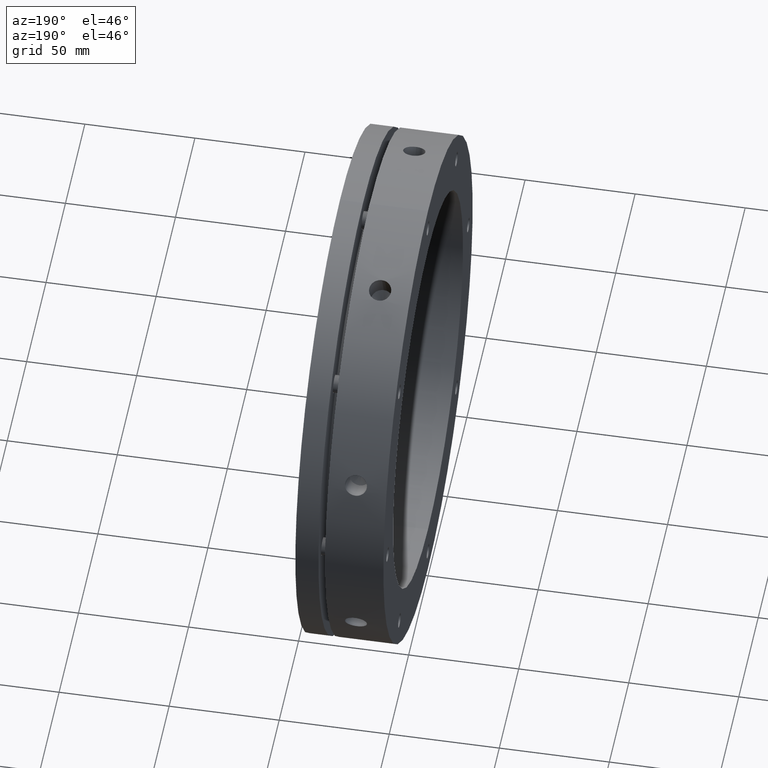
[diagram: clean part render]
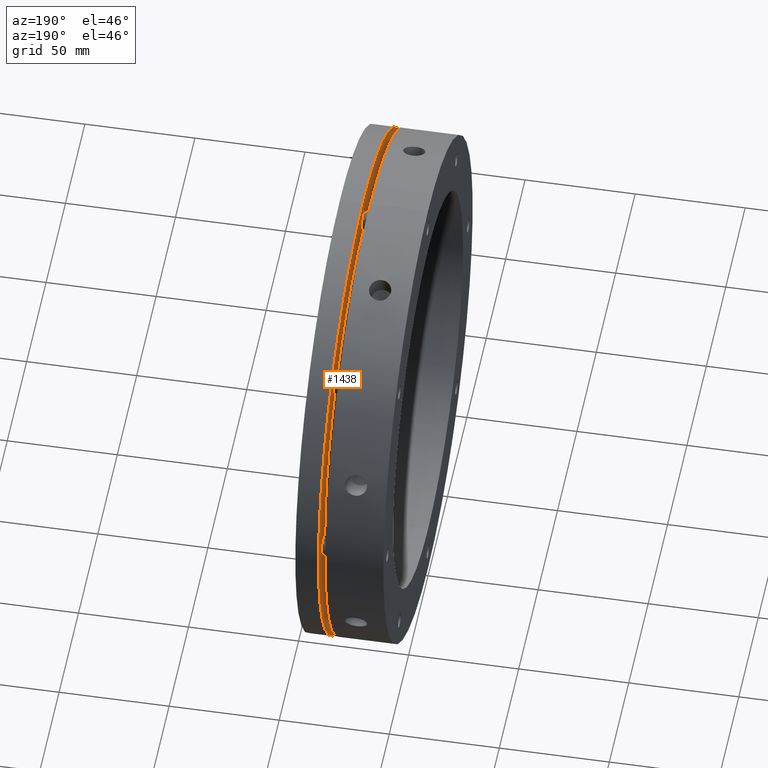
[diagram: same view with one face highlighted and labeled with its STEP entity id]
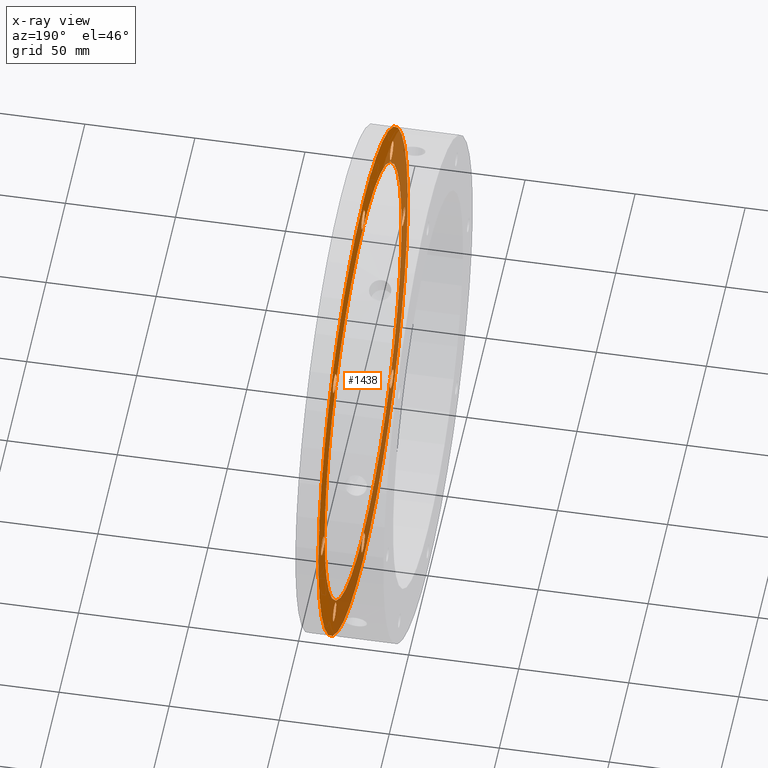
[diagram: x-ray of the same camera — body ghosted, the highlighted face saturated]
A machine part, auxiliary view. The second image highlights one B-rep face of the part: STEP entity #1438.
The next image is the same camera in x-ray: the body ghosted, the highlighted face saturated — about 52% of this face is hidden behind the body in this view.
In plain terms, the highlighted planar face has unit normal (1, 0, 0).
Its self-contained STEP definition (entity closure, byte-faithful):
#7 = CIRCLE ( 'NONE', #3951, 4.299999999999998000 ) ;
#18 = CIRCLE ( 'NONE', #3945, 115.0000000000000000 ) ;
#26 = CIRCLE ( 'NONE', #3949, 4.299999999999999800 ) ;
#29 = CIRCLE ( 'NONE', #3947, 4.299999999999998000 ) ;
#194 = CIRCLE ( 'NONE', #3959, 4.299999999999998000 ) ;
#254 = CIRCLE ( 'NONE', #3957, 4.299999999999999800 ) ;
#402 = DIRECTION ( 'NONE',  ( 1.000000000000000000, -0.0000000000000000000, 0.0000000000000000000 ) ) ;
#404 = CARTESIAN_POINT ( 'NONE',  ( 29.49999999999997500, 107.0000000000000000, 0.0000000000000000000 ) ) ;
#406 = PLANE ( 'NONE',  #5189 ) ;
#409 = DIRECTION ( 'NONE',  ( 0.0000000000000000000, 0.0000000000000000000, -1.000000000000000000 ) ) ;
#812 = CARTESIAN_POINT ( 'NONE',  ( 29.49999999999997500, 73.53910524340096800, 69.23910524340092800 ) ) ;
#873 = CARTESIAN_POINT ( 'NONE',  ( 29.49999999999997200, 1.408343819019456100E-014, 115.0000000000000000 ) ) ;
#883 = CARTESIAN_POINT ( 'NONE',  ( 29.49999999999997500, 73.53910524340096800, 77.83910524340093700 ) ) ;
#884 = CARTESIAN_POINT ( 'NONE',  ( 29.49999999999997500, 104.0000000000000100, 4.299999999999982900 ) ) ;
#888 = CARTESIAN_POINT ( 'NONE',  ( 29.49999999999997200, 0.0000000000000000000, -115.0000000000000000 ) ) ;
#889 = CARTESIAN_POINT ( 'NONE',  ( 29.49999999999997500, 104.0000000000000100, -4.300000000000017600 ) ) ;
#915 = CARTESIAN_POINT ( 'NONE',  ( 29.49999999999997500, 0.0000000000000000000, 0.0000000000000000000 ) ) ;
#916 = DIRECTION ( 'NONE',  ( -1.000000000000000000, 0.0000000000000000000, 0.0000000000000000000 ) ) ;
#917 = DIRECTION ( 'NONE',  ( 0.0000000000000000000, 0.0000000000000000000, 1.000000000000000000 ) ) ;
#937 = CARTESIAN_POINT ( 'NONE',  ( 29.49999999999997500, -1.723697187636663600E-014, -99.70000000000001700 ) ) ;
#941 = CARTESIAN_POINT ( 'NONE',  ( 29.49999999999997500, 0.0000000000000000000, 104.0000000000000100 ) ) ;
#942 = DIRECTION ( 'NONE',  ( -1.000000000000000000, -0.0000000000000000000, -0.0000000000000000000 ) ) ;
#943 = DIRECTION ( 'NONE',  ( 0.0000000000000000000, 0.0000000000000000000, -1.000000000000000000 ) ) ;
#944 = CARTESIAN_POINT ( 'NONE',  ( 29.49999999999997500, -73.53910524340094000, 73.53910524340095400 ) ) ;
#945 = DIRECTION ( 'NONE',  ( -1.000000000000000000, -0.0000000000000000000, -0.0000000000000000000 ) ) ;
#946 = DIRECTION ( 'NONE',  ( 0.0000000000000000000, 0.0000000000000000000, -1.000000000000000000 ) ) ;
#947 = CARTESIAN_POINT ( 'NONE',  ( 29.49999999999997500, -104.0000000000000100, 0.0000000000000000000 ) ) ;
#948 = DIRECTION ( 'NONE',  ( -1.000000000000000000, -0.0000000000000000000, -0.0000000000000000000 ) ) ;
#949 = DIRECTION ( 'NONE',  ( 0.0000000000000000000, 0.0000000000000000000, -1.000000000000000000 ) ) ;
#950 = CARTESIAN_POINT ( 'NONE',  ( 29.49999999999997500, -73.53910524340095400, -73.53910524340094000 ) ) ;
#951 = DIRECTION ( 'NONE',  ( -1.000000000000000000, -0.0000000000000000000, -0.0000000000000000000 ) ) ;
#952 = DIRECTION ( 'NONE',  ( 0.0000000000000000000, 0.0000000000000000000, -1.000000000000000000 ) ) ;
#953 = CARTESIAN_POINT ( 'NONE',  ( 29.49999999999997500, -1.776356999999999900E-014, -104.0000000000000100 ) ) ;
#954 = DIRECTION ( 'NONE',  ( -1.000000000000000000, -0.0000000000000000000, -0.0000000000000000000 ) ) ;
#955 = DIRECTION ( 'NONE',  ( 0.0000000000000000000, 0.0000000000000000000, -1.000000000000000000 ) ) ;
#956 = CARTESIAN_POINT ( 'NONE',  ( 29.49999999999997500, 73.53910524340092500, -73.53910524340095400 ) ) ;
#957 = DIRECTION ( 'NONE',  ( -1.000000000000000000, -0.0000000000000000000, -0.0000000000000000000 ) ) ;
#958 = DIRECTION ( 'NONE',  ( 0.0000000000000000000, 0.0000000000000000000, -1.000000000000000000 ) ) ;
#959 = CARTESIAN_POINT ( 'NONE',  ( 29.49999999999997500, 104.0000000000000100, -1.776356999999999900E-014 ) ) ;
#960 = DIRECTION ( 'NONE',  ( -1.000000000000000000, -0.0000000000000000000, -0.0000000000000000000 ) ) ;
#961 = DIRECTION ( 'NONE',  ( 0.0000000000000000000, 0.0000000000000000000, -1.000000000000000000 ) ) ;
#962 = CARTESIAN_POINT ( 'NONE',  ( 29.49999999999997500, 73.53910524340096800, 73.53910524340092500 ) ) ;
#963 = DIRECTION ( 'NONE',  ( -1.000000000000000000, -0.0000000000000000000, -0.0000000000000000000 ) ) ;
#964 = DIRECTION ( 'NONE',  ( 0.0000000000000000000, 0.0000000000000000000, -1.000000000000000000 ) ) ;
#965 = CARTESIAN_POINT ( 'NONE',  ( 29.49999999999997200, 0.0000000000000000000, 0.0000000000000000000 ) ) ;
#966 = DIRECTION ( 'NONE',  ( 1.000000000000000000, 0.0000000000000000000, 0.0000000000000000000 ) ) ;
#967 = DIRECTION ( 'NONE',  ( 0.0000000000000000000, 0.0000000000000000000, -1.000000000000000000 ) ) ;
#973 = CARTESIAN_POINT ( 'NONE',  ( 29.49999999999997500, -73.53910524340095400, -77.83910524340095100 ) ) ;
#997 = CARTESIAN_POINT ( 'NONE',  ( 29.49999999999997500, -104.0000000000000100, 4.299999999999999800 ) ) ;
#1029 = CARTESIAN_POINT ( 'NONE',  ( 29.49999999999997500, -104.0000000000000100, -4.299999999999999800 ) ) ;
#1034 = CARTESIAN_POINT ( 'NONE',  ( 29.49999999999997500, 73.53910524340092500, -77.83910524340095100 ) ) ;
#1037 = CARTESIAN_POINT ( 'NONE',  ( 29.49999999999997500, 1.212400331155879700E-014, -99.00000000000000000 ) ) ;
#1049 = CIRCLE ( 'NONE', #5040, 115.0000000000000000 ) ;
#1078 = CIRCLE ( 'NONE', #5043, 4.299999999999998000 ) ;
#1080 = CIRCLE ( 'NONE', #5048, 4.299999999999998000 ) ;
#1089 = CIRCLE ( 'NONE', #5047, 4.299999999999998000 ) ;
#1092 = CIRCLE ( 'NONE', #5044, 4.299999999999998000 ) ;
#1097 = CIRCLE ( 'NONE', #5046, 4.299999999999999800 ) ;
#1116 = CIRCLE ( 'NONE', #5045, 4.299999999999998000 ) ;
#1121 = CIRCLE ( 'NONE', #5042, 4.299999999999999800 ) ;
#1135 = CIRCLE ( 'NONE', #5041, 4.299999999999998000 ) ;
#1280 = CIRCLE ( 'NONE', #5056, 99.00000000000000000 ) ;
#1438 = ADVANCED_FACE ( 'NONE', ( #3524, #3538, #3529, #3542, #3525, #3544, #3555, #3530, #3503, #3504 ), #406, .F. ) ;
#1747 = CARTESIAN_POINT ( 'NONE',  ( 29.49999999999997500, -73.53910524340094000, 77.83910524340095100 ) ) ;
#1758 = CARTESIAN_POINT ( 'NONE',  ( 29.49999999999997500, 5.265981236333620400E-016, 108.3000000000000100 ) ) ;
#1760 = CARTESIAN_POINT ( 'NONE',  ( 29.49999999999997500, -73.53910524340094000, 69.23910524340095700 ) ) ;
#1776 = CARTESIAN_POINT ( 'NONE',  ( 29.49999999999997500, 0.0000000000000000000, 99.00000000000000000 ) ) ;
#1782 = CARTESIAN_POINT ( 'NONE',  ( 29.49999999999997500, 73.53910524340092500, -69.23910524340095700 ) ) ;
#1798 = CARTESIAN_POINT ( 'NONE',  ( 29.49999999999997500, 0.0000000000000000000, 99.70000000000001700 ) ) ;
#1800 = CARTESIAN_POINT ( 'NONE',  ( 29.49999999999997500, -1.776356999999999900E-014, -108.3000000000000100 ) ) ;
#2246 = CARTESIAN_POINT ( 'NONE',  ( 29.49999999999997500, 0.0000000000000000000, 0.0000000000000000000 ) ) ;
#2247 = DIRECTION ( 'NONE',  ( -1.000000000000000000, 0.0000000000000000000, 0.0000000000000000000 ) ) ;
#2248 = DIRECTION ( 'NONE',  ( 0.0000000000000000000, 0.0000000000000000000, 1.000000000000000000 ) ) ;
#3108 = CARTESIAN_POINT ( 'NONE',  ( 29.49999999999997500, 0.0000000000000000000, 104.0000000000000100 ) ) ;
#3109 = DIRECTION ( 'NONE',  ( -1.000000000000000000, -0.0000000000000000000, -0.0000000000000000000 ) ) ;
#3110 = DIRECTION ( 'NONE',  ( 0.0000000000000000000, 0.0000000000000000000, -1.000000000000000000 ) ) ;
#3118 = CARTESIAN_POINT ( 'NONE',  ( 29.49999999999997500, -73.53910524340094000, 73.53910524340095400 ) ) ;
#3119 = DIRECTION ( 'NONE',  ( -1.000000000000000000, -0.0000000000000000000, -0.0000000000000000000 ) ) ;
#3120 = DIRECTION ( 'NONE',  ( 0.0000000000000000000, 0.0000000000000000000, -1.000000000000000000 ) ) ;
#3128 = CARTESIAN_POINT ( 'NONE',  ( 29.49999999999997500, -104.0000000000000100, 0.0000000000000000000 ) ) ;
#3129 = DIRECTION ( 'NONE',  ( -1.000000000000000000, -0.0000000000000000000, -0.0000000000000000000 ) ) ;
#3130 = DIRECTION ( 'NONE',  ( 0.0000000000000000000, 0.0000000000000000000, -1.000000000000000000 ) ) ;
#3138 = CARTESIAN_POINT ( 'NONE',  ( 29.49999999999997500, -73.53910524340095400, -73.53910524340094000 ) ) ;
#3139 = DIRECTION ( 'NONE',  ( -1.000000000000000000, -0.0000000000000000000, -0.0000000000000000000 ) ) ;
#3140 = DIRECTION ( 'NONE',  ( 0.0000000000000000000, 0.0000000000000000000, -1.000000000000000000 ) ) ;
#3148 = CARTESIAN_POINT ( 'NONE',  ( 29.49999999999997500, -1.776356999999999900E-014, -104.0000000000000100 ) ) ;
#3149 = DIRECTION ( 'NONE',  ( -1.000000000000000000, -0.0000000000000000000, -0.0000000000000000000 ) ) ;
#3150 = DIRECTION ( 'NONE',  ( 0.0000000000000000000, 0.0000000000000000000, -1.000000000000000000 ) ) ;
#3158 = CARTESIAN_POINT ( 'NONE',  ( 29.49999999999997500, 73.53910524340092500, -73.53910524340095400 ) ) ;
#3159 = DIRECTION ( 'NONE',  ( -1.000000000000000000, -0.0000000000000000000, -0.0000000000000000000 ) ) ;
#3160 = DIRECTION ( 'NONE',  ( 0.0000000000000000000, 0.0000000000000000000, -1.000000000000000000 ) ) ;
#3168 = CARTESIAN_POINT ( 'NONE',  ( 29.49999999999997500, 104.0000000000000100, -1.776356999999999900E-014 ) ) ;
#3169 = DIRECTION ( 'NONE',  ( -1.000000000000000000, -0.0000000000000000000, -0.0000000000000000000 ) ) ;
#3170 = DIRECTION ( 'NONE',  ( 0.0000000000000000000, 0.0000000000000000000, -1.000000000000000000 ) ) ;
#3178 = CARTESIAN_POINT ( 'NONE',  ( 29.49999999999997500, 73.53910524340096800, 73.53910524340092500 ) ) ;
#3179 = DIRECTION ( 'NONE',  ( -1.000000000000000000, -0.0000000000000000000, -0.0000000000000000000 ) ) ;
#3180 = DIRECTION ( 'NONE',  ( 0.0000000000000000000, 0.0000000000000000000, -1.000000000000000000 ) ) ;
#3188 = CARTESIAN_POINT ( 'NONE',  ( 29.49999999999997200, 0.0000000000000000000, 0.0000000000000000000 ) ) ;
#3189 = DIRECTION ( 'NONE',  ( 1.000000000000000000, 0.0000000000000000000, 0.0000000000000000000 ) ) ;
#3190 = DIRECTION ( 'NONE',  ( 0.0000000000000000000, 0.0000000000000000000, -1.000000000000000000 ) ) ;
#3503 = FACE_BOUND ( 'NONE', #3573, .T. ) ;
#3504 = FACE_OUTER_BOUND ( 'NONE', #3603, .T. ) ;
#3524 = FACE_BOUND ( 'NONE', #3592, .T. ) ;
#3525 = FACE_BOUND ( 'NONE', #3593, .T. ) ;
#3529 = FACE_BOUND ( 'NONE', #3607, .T. ) ;
#3530 = FACE_BOUND ( 'NONE', #3605, .T. ) ;
#3538 = FACE_BOUND ( 'NONE', #3612, .T. ) ;
#3542 = FACE_BOUND ( 'NONE', #3609, .T. ) ;
#3544 = FACE_BOUND ( 'NONE', #3610, .T. ) ;
#3555 = FACE_BOUND ( 'NONE', #3586, .T. ) ;
#3558 = CARTESIAN_POINT ( 'NONE',  ( 29.49999999999997500, -73.53910524340095400, -69.23910524340094200 ) ) ;
#3573 = EDGE_LOOP ( 'NONE', ( #4470, #4497 ) ) ;
#3586 = EDGE_LOOP ( 'NONE', ( #4486, #4572 ) ) ;
#3592 = EDGE_LOOP ( 'NONE', ( #4603, #4602 ) ) ;
#3593 = EDGE_LOOP ( 'NONE', ( #4482, #4616 ) ) ;
#3603 = EDGE_LOOP ( 'NONE', ( #4472, #4471 ) ) ;
#3605 = EDGE_LOOP ( 'NONE', ( #4463, #4466 ) ) ;
#3607 = EDGE_LOOP ( 'NONE', ( #4571, #4703 ) ) ;
#3609 = EDGE_LOOP ( 'NONE', ( #4594, #4556 ) ) ;
#3610 = EDGE_LOOP ( 'NONE', ( #4557, #4481 ) ) ;
#3612 = EDGE_LOOP ( 'NONE', ( #4468, #4492 ) ) ;
#3945 = AXIS2_PLACEMENT_3D ( 'NONE', #3188, #3189, #3190 ) ;
#3947 = AXIS2_PLACEMENT_3D ( 'NONE', #3178, #3179, #3180 ) ;
#3949 = AXIS2_PLACEMENT_3D ( 'NONE', #3168, #3169, #3170 ) ;
#3951 = AXIS2_PLACEMENT_3D ( 'NONE', #3158, #3159, #3160 ) ;
#3953 = AXIS2_PLACEMENT_3D ( 'NONE', #3148, #3149, #3150 ) ;
#3955 = AXIS2_PLACEMENT_3D ( 'NONE', #3138, #3139, #3140 ) ;
#3957 = AXIS2_PLACEMENT_3D ( 'NONE', #3128, #3129, #3130 ) ;
#3959 = AXIS2_PLACEMENT_3D ( 'NONE', #3118, #3119, #3120 ) ;
#3961 = AXIS2_PLACEMENT_3D ( 'NONE', #3108, #3109, #3110 ) ;
#4031 = AXIS2_PLACEMENT_3D ( 'NONE', #2246, #2247, #2248 ) ;
#4108 = VERTEX_POINT ( 'NONE', #812 ) ;
#4263 = VERTEX_POINT ( 'NONE', #873 ) ;
#4331 = VERTEX_POINT ( 'NONE', #883 ) ;
#4348 = VERTEX_POINT ( 'NONE', #888 ) ;
#4357 = VERTEX_POINT ( 'NONE', #884 ) ;
#4358 = VERTEX_POINT ( 'NONE', #889 ) ;
#4463 = ORIENTED_EDGE ( 'NONE', *, *, #5829, .F. ) ;
#4466 = ORIENTED_EDGE ( 'NONE', *, *, #5249, .F. ) ;
#4468 = ORIENTED_EDGE ( 'NONE', *, *, #5805, .F. ) ;
#4470 = ORIENTED_EDGE ( 'NONE', *, *, #5833, .F. ) ;
#4471 = ORIENTED_EDGE ( 'NONE', *, *, #5251, .F. ) ;
#4472 = ORIENTED_EDGE ( 'NONE', *, *, #5837, .F. ) ;
#4481 = ORIENTED_EDGE ( 'NONE', *, *, #5247, .F. ) ;
#4482 = ORIENTED_EDGE ( 'NONE', *, *, #5817, .F. ) ;
#4486 = ORIENTED_EDGE ( 'NONE', *, *, #5825, .F. ) ;
#4492 = ORIENTED_EDGE ( 'NONE', *, *, #5243, .F. ) ;
#4497 = ORIENTED_EDGE ( 'NONE', *, *, #5250, .F. ) ;
#4556 = ORIENTED_EDGE ( 'NONE', *, *, #5245, .F. ) ;
#4557 = ORIENTED_EDGE ( 'NONE', *, *, #5821, .F. ) ;
#4571 = ORIENTED_EDGE ( 'NONE', *, *, #5809, .F. ) ;
#4572 = ORIENTED_EDGE ( 'NONE', *, *, #5248, .F. ) ;
#4594 = ORIENTED_EDGE ( 'NONE', *, *, #5813, .F. ) ;
#4602 = ORIENTED_EDGE ( 'NONE', *, *, #5235, .F. ) ;
#4603 = ORIENTED_EDGE ( 'NONE', *, *, #5644, .F. ) ;
#4616 = ORIENTED_EDGE ( 'NONE', *, *, #5246, .F. ) ;
#4703 = ORIENTED_EDGE ( 'NONE', *, *, #5244, .F. ) ;
#5040 = AXIS2_PLACEMENT_3D ( 'NONE', #965, #966, #967 ) ;
#5041 = AXIS2_PLACEMENT_3D ( 'NONE', #962, #963, #964 ) ;
#5042 = AXIS2_PLACEMENT_3D ( 'NONE', #959, #960, #961 ) ;
#5043 = AXIS2_PLACEMENT_3D ( 'NONE', #956, #957, #958 ) ;
#5044 = AXIS2_PLACEMENT_3D ( 'NONE', #953, #954, #955 ) ;
#5045 = AXIS2_PLACEMENT_3D ( 'NONE', #950, #951, #952 ) ;
#5046 = AXIS2_PLACEMENT_3D ( 'NONE', #947, #948, #949 ) ;
#5047 = AXIS2_PLACEMENT_3D ( 'NONE', #944, #945, #946 ) ;
#5048 = AXIS2_PLACEMENT_3D ( 'NONE', #941, #942, #943 ) ;
#5056 = AXIS2_PLACEMENT_3D ( 'NONE', #915, #916, #917 ) ;
#5189 = AXIS2_PLACEMENT_3D ( 'NONE', #404, #402, #409 ) ;
#5235 = EDGE_CURVE ( 'NONE', #5345, #5466, #1280, .T. ) ;
#5243 = EDGE_CURVE ( 'NONE', #5436, #5505, #1080, .T. ) ;
#5244 = EDGE_CURVE ( 'NONE', #5413, #5441, #1089, .T. ) ;
#5245 = EDGE_CURVE ( 'NONE', #5290, #5333, #1097, .T. ) ;
#5246 = EDGE_CURVE ( 'NONE', #5387, #5263, #1116, .T. ) ;
#5247 = EDGE_CURVE ( 'NONE', #5260, #5508, #1092, .T. ) ;
#5248 = EDGE_CURVE ( 'NONE', #5478, #5340, #1078, .T. ) ;
#5249 = EDGE_CURVE ( 'NONE', #4357, #4358, #1121, .T. ) ;
#5250 = EDGE_CURVE ( 'NONE', #4331, #4108, #1135, .T. ) ;
#5251 = EDGE_CURVE ( 'NONE', #4263, #4348, #1049, .T. ) ;
#5260 = VERTEX_POINT ( 'NONE', #937 ) ;
#5263 = VERTEX_POINT ( 'NONE', #973 ) ;
#5290 = VERTEX_POINT ( 'NONE', #997 ) ;
#5333 = VERTEX_POINT ( 'NONE', #1029 ) ;
#5340 = VERTEX_POINT ( 'NONE', #1034 ) ;
#5345 = VERTEX_POINT ( 'NONE', #1037 ) ;
#5387 = VERTEX_POINT ( 'NONE', #3558 ) ;
#5413 = VERTEX_POINT ( 'NONE', #1747 ) ;
#5436 = VERTEX_POINT ( 'NONE', #1758 ) ;
#5441 = VERTEX_POINT ( 'NONE', #1760 ) ;
#5466 = VERTEX_POINT ( 'NONE', #1776 ) ;
#5478 = VERTEX_POINT ( 'NONE', #1782 ) ;
#5505 = VERTEX_POINT ( 'NONE', #1798 ) ;
#5508 = VERTEX_POINT ( 'NONE', #1800 ) ;
#5644 = EDGE_CURVE ( 'NONE', #5466, #5345, #5933, .T. ) ;
#5805 = EDGE_CURVE ( 'NONE', #5505, #5436, #6009, .T. ) ;
#5809 = EDGE_CURVE ( 'NONE', #5441, #5413, #194, .T. ) ;
#5813 = EDGE_CURVE ( 'NONE', #5333, #5290, #254, .T. ) ;
#5817 = EDGE_CURVE ( 'NONE', #5263, #5387, #6017, .T. ) ;
#5821 = EDGE_CURVE ( 'NONE', #5508, #5260, #6027, .T. ) ;
#5825 = EDGE_CURVE ( 'NONE', #5340, #5478, #7, .T. ) ;
#5829 = EDGE_CURVE ( 'NONE', #4358, #4357, #26, .T. ) ;
#5833 = EDGE_CURVE ( 'NONE', #4108, #4331, #29, .T. ) ;
#5837 = EDGE_CURVE ( 'NONE', #4348, #4263, #18, .T. ) ;
#5933 = CIRCLE ( 'NONE', #4031, 99.00000000000000000 ) ;
#6009 = CIRCLE ( 'NONE', #3961, 4.299999999999998000 ) ;
#6017 = CIRCLE ( 'NONE', #3955, 4.299999999999998000 ) ;
#6027 = CIRCLE ( 'NONE', #3953, 4.299999999999998000 ) ;